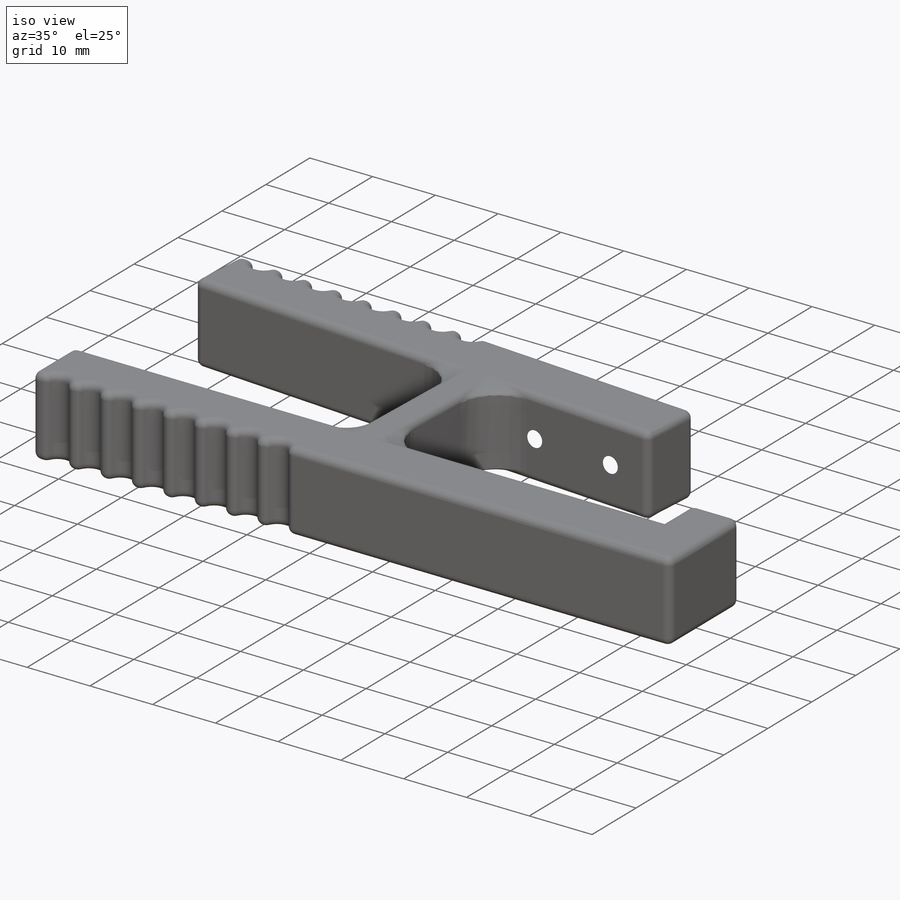
[diagram: iso view]
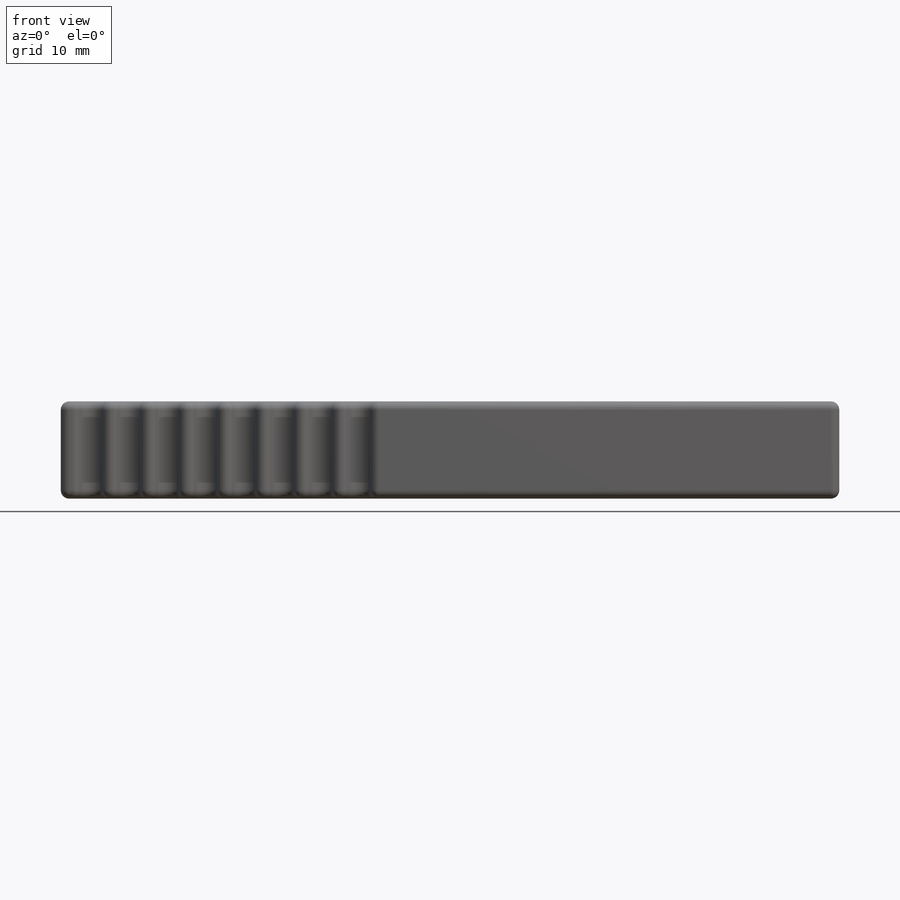
[diagram: front view]
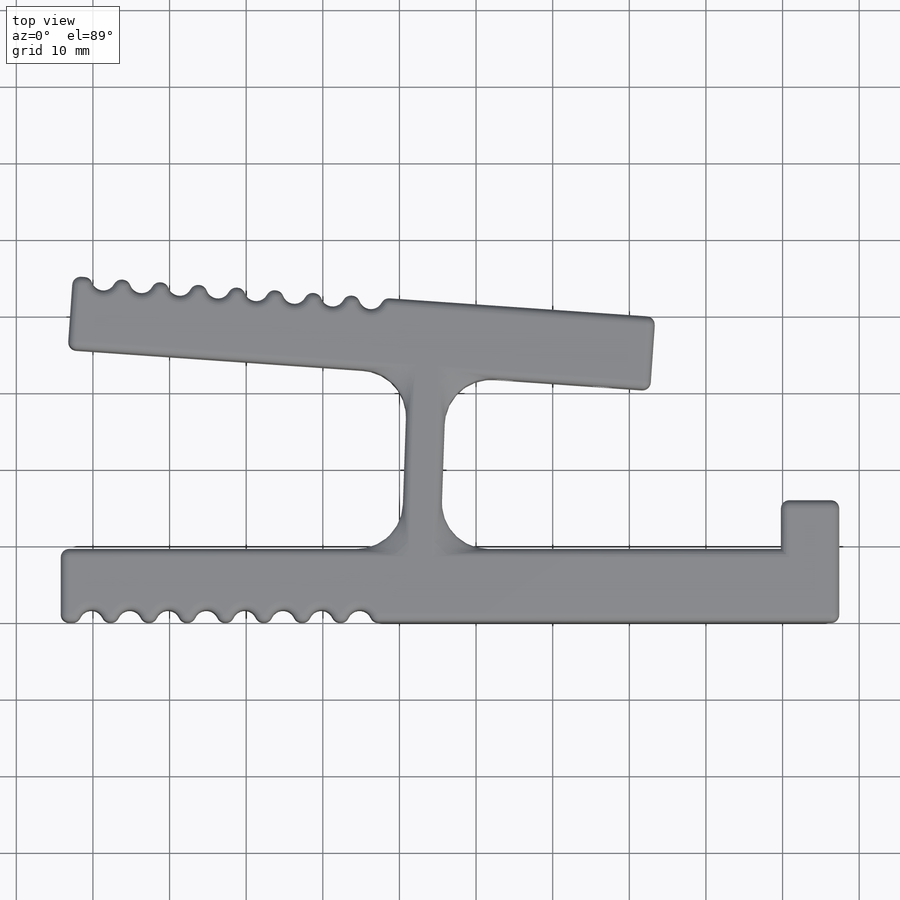
[diagram: top view]
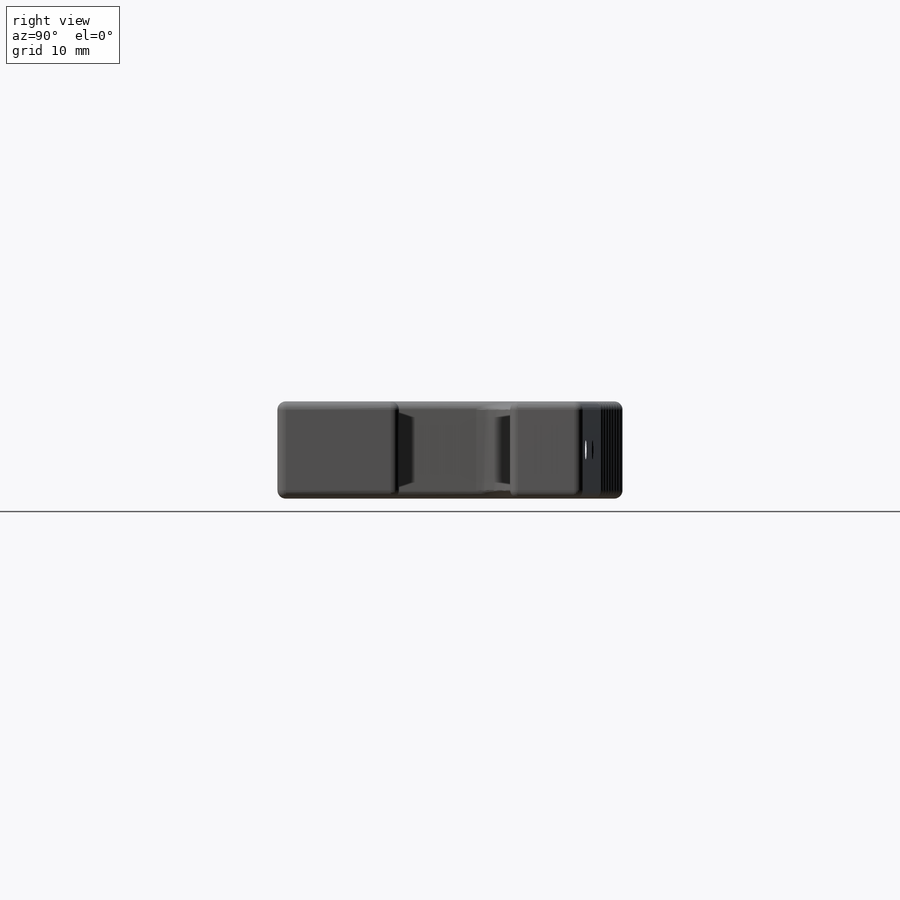
[diagram: right view]
SOLIDWORKS PART (.sldprt)
format: sldprt  version: not decoded by parser v0  size: 879,616 bytes
history: native  units: mm
features: sketch x4, extrude x2, cut_extrude x2, fillet x2, material x1 (+11 scaffold rows collapsed)
feature tree (22):
  scaffold x11  (default folders/planes/origin — collapsed)
  material  "Material <not specified>"
  sketch  "Sketch1"  dims[c1.D1=~69.925914mm c2.D1=88.0deg c2.D2=~31.327004mm c3.D2=92.0deg c4.D2=~31.327004mm c5.D2=88.0deg c5.D3=101.6mm c5.D4=76.2mm c5.D5=44.45mm c5.D6=44.45mm c5.D7=5.08mm c5.D8=~69.971602mm c5.D9=101.6mm c6.D9=~164.85049deg c7.D9=~28.084723mm c8.D9=270.0deg c8.D8=9.525mm c8.D10=9.525mm c8.D11=23.0mm]
  extrude  "Boss-Extrude1"  Depth=12.7mm
  sketch  "Sketch2"  dims[D1=7.62mm]
  extrude  "Boss-Extrude2"  Depth=6.35mm
  sketch  "Sketch3"  dims[c1.D1=3.175mm c1.D2=3.175mm c1.D3=~1.078581mm c2.D1=4.0mm c2.D3=4.0mm c2.D2=8.0 c2.D4=8.0]
  cut_extrude  "Cut-Extrude1"  [1 undecoded]
  fillet  "Fillet2"  Radius=1.1mm
  fillet  "Fillet3"  Radius=6mm
  sketch  "Sketch4"  dims[c1.D1=6.35mm c1.D2=~7.856918mm c2.D2=90.0deg c3.D2=~7.856918mm c4.D2=90.0deg c5.D2=6.35mm c5.D3=2.0]
  cut_extrude  "Cut-Extrude2"  Depth=16.35mm
decode coverage: 9 of 10 modeling features carry decoded parameters
note: ~ marks probable driven/reference dimensions
note: 1 parameter value undecoded
note: suppression state not decoded; provenance and decode notes live in map.json
